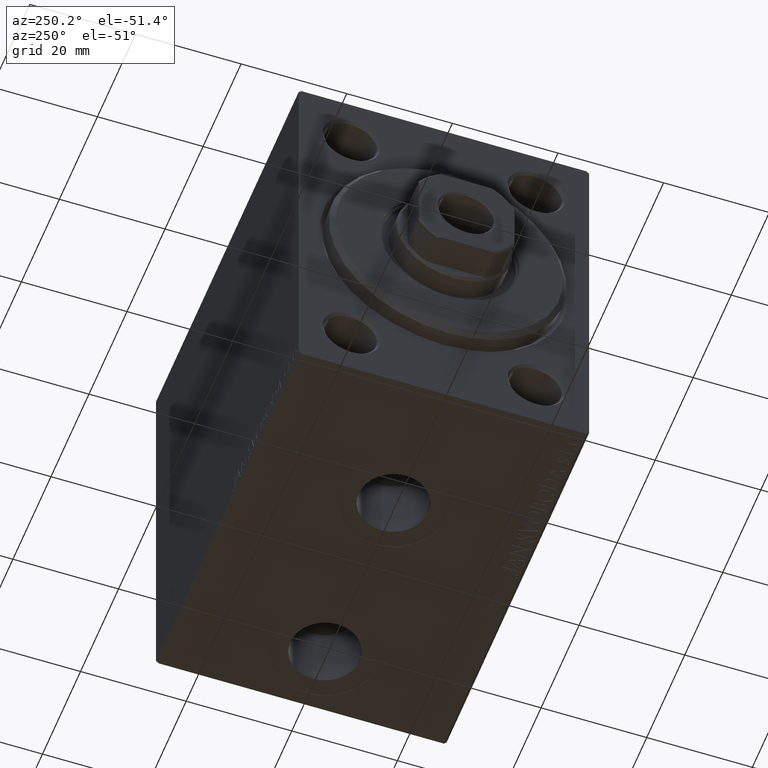
[diagram: clean part render]
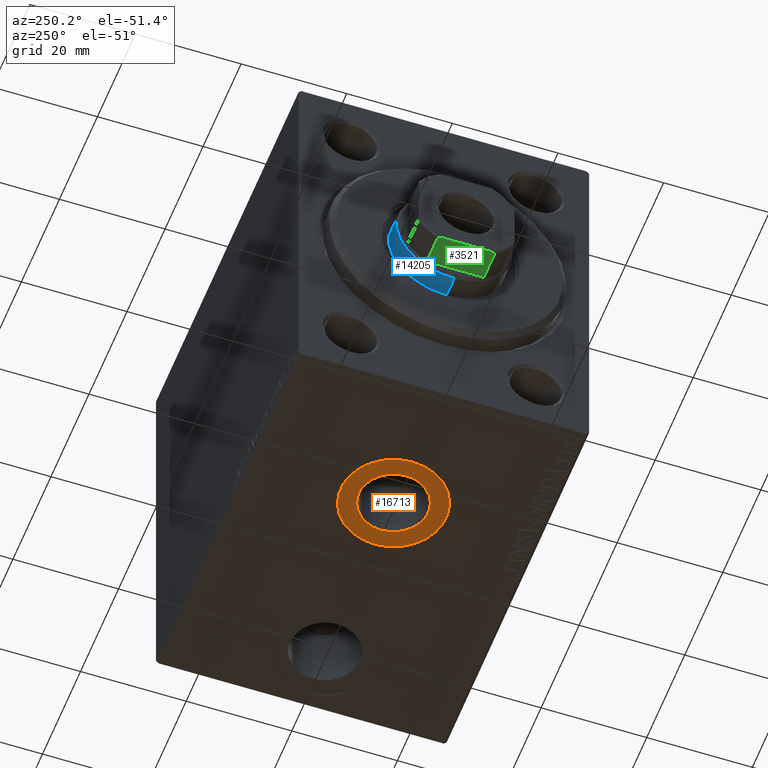
[diagram: same view with three faces highlighted in distinct colors, each labeled with its STEP entity id]
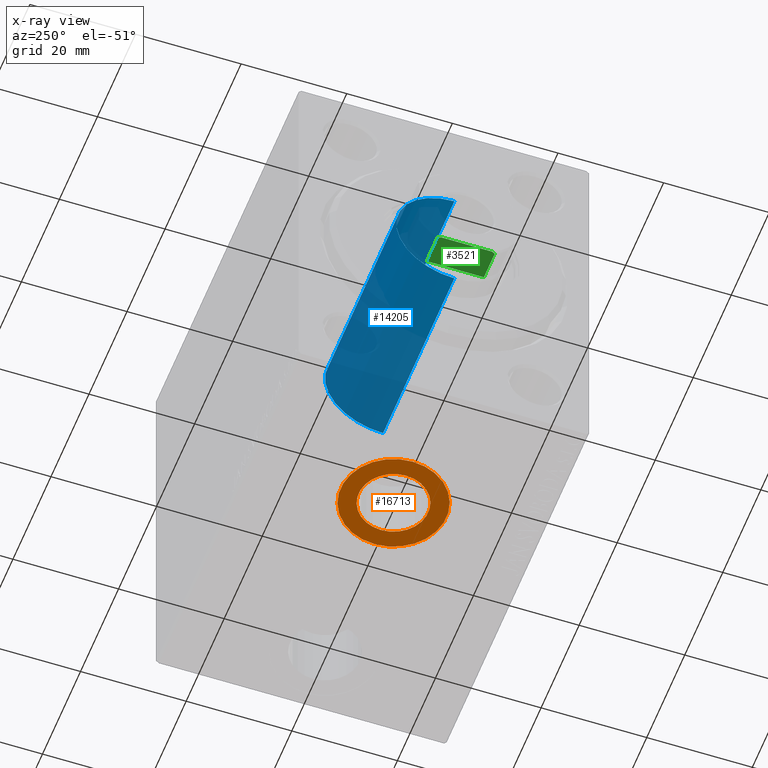
[diagram: x-ray of the same camera — body ghosted, the three highlighted faces saturated]
A machine part, auxiliary view with three faces highlighted in distinct colors.
The next image is the same camera in x-ray (body ghosted, the three faces saturated) — at least one of them is partly hidden behind the body in this view.
Their STEP definitions:

[orange] entity #16713 — the highlighted planar face has unit normal (0, 0, -1).
#9 = AXIS2_PLACEMENT_3D ( 'NONE', #40046, #1789, #26445 ) ;
#1789 = DIRECTION ( 'NONE',  ( 0.000000000000000000, 0.000000000000000000, -1.000000000000000000 ) ) ;
#2580 = EDGE_LOOP ( 'NONE', ( #9465, #25286 ) ) ;
#4711 = DIRECTION ( 'NONE',  ( -1.000000000000000000, 0.000000000000000000, 0.000000000000000000 ) ) ;
#5882 = FACE_BOUND ( 'NONE', #28561, .T. ) ;
#6162 = CARTESIAN_POINT ( 'NONE',  ( 26.50000000000000000, -3.461774290897328353E-15, -37.39999999999999858 ) ) ;
#6173 = AXIS2_PLACEMENT_3D ( 'NONE', #35831, #33281, #4711 ) ;
#6832 = AXIS2_PLACEMENT_3D ( 'NONE', #24485, #11510, #22556 ) ;
#7525 = CIRCLE ( 'NONE', #45043, 9.999999999999998224 ) ;
#8184 = CARTESIAN_POINT ( 'NONE',  ( 33.07999999999999829, -2.655956697058369311E-15, -37.39999999999999858 ) ) ;
#9465 = ORIENTED_EDGE ( 'NONE', *, *, #43912, .T. ) ;
#11510 = DIRECTION ( 'NONE',  ( 0.000000000000000000, 0.000000000000000000, -1.000000000000000000 ) ) ;
#12065 = ORIENTED_EDGE ( 'NONE', *, *, #13625, .F. ) ;
#12854 = DIRECTION ( 'NONE',  ( -1.000000000000000000, 0.000000000000000000, 0.000000000000000000 ) ) ;
#13625 = EDGE_CURVE ( 'NONE', #15813, #20810, #26037, .T. ) ;
#15813 = VERTEX_POINT ( 'NONE', #8184 ) ;
#16713 = ADVANCED_FACE ( 'NONE', ( #5882, #41363 ), #29869, .T. ) ;
#19935 = CARTESIAN_POINT ( 'NONE',  ( 0.000000000000000000, 0.000000000000000000, -37.39999999999999858 ) ) ;
#20810 = VERTEX_POINT ( 'NONE', #44692 ) ;
#22556 = DIRECTION ( 'NONE',  ( -1.000000000000000000, 0.000000000000000000, 0.000000000000000000 ) ) ;
#22947 = DIRECTION ( 'NONE',  ( 0.000000000000000000, 0.000000000000000000, -1.000000000000000000 ) ) ;
#23177 = AXIS2_PLACEMENT_3D ( 'NONE', #19935, #22947, #37444 ) ;
#23554 = CIRCLE ( 'NONE', #9, 6.580000000000002736 ) ;
#24485 = CARTESIAN_POINT ( 'NONE',  ( 26.50000000000000000, -3.461774290897328353E-15, -37.39999999999999858 ) ) ;
#25286 = ORIENTED_EDGE ( 'NONE', *, *, #42513, .T. ) ;
#26037 = CIRCLE ( 'NONE', #6173, 6.580000000000002736 ) ;
#26445 = DIRECTION ( 'NONE',  ( -1.000000000000000000, 0.000000000000000000, 0.000000000000000000 ) ) ;
#28561 = EDGE_LOOP ( 'NONE', ( #39256, #12065 ) ) ;
#29869 = PLANE ( 'NONE',  #23177 ) ;
#30818 = DIRECTION ( 'NONE',  ( 0.000000000000000000, 0.000000000000000000, -1.000000000000000000 ) ) ;
#32822 = EDGE_CURVE ( 'NONE', #20810, #15813, #23554, .T. ) ;
#33281 = DIRECTION ( 'NONE',  ( 0.000000000000000000, 0.000000000000000000, -1.000000000000000000 ) ) ;
#33314 = VERTEX_POINT ( 'NONE', #38109 ) ;
#34442 = VERTEX_POINT ( 'NONE', #42897 ) ;
#35831 = CARTESIAN_POINT ( 'NONE',  ( 26.50000000000000000, -3.461774290897328353E-15, -37.39999999999999858 ) ) ;
#37444 = DIRECTION ( 'NONE',  ( -1.000000000000000000, 0.000000000000000000, -0.000000000000000000 ) ) ;
#37698 = CIRCLE ( 'NONE', #6832, 9.999999999999998224 ) ;
#38109 = CARTESIAN_POINT ( 'NONE',  ( 16.50000000000000000, -3.461774290897328353E-15, -37.39999999999999858 ) ) ;
#39256 = ORIENTED_EDGE ( 'NONE', *, *, #32822, .F. ) ;
#40046 = CARTESIAN_POINT ( 'NONE',  ( 26.50000000000000000, -3.461774290897328353E-15, -37.39999999999999858 ) ) ;
#41363 = FACE_OUTER_BOUND ( 'NONE', #2580, .T. ) ;
#42513 = EDGE_CURVE ( 'NONE', #34442, #33314, #7525, .T. ) ;
#42897 = CARTESIAN_POINT ( 'NONE',  ( 36.50000000000000000, -2.237127491749975294E-15, -37.39999999999999858 ) ) ;
#43912 = EDGE_CURVE ( 'NONE', #33314, #34442, #37698, .T. ) ;
#44692 = CARTESIAN_POINT ( 'NONE',  ( 19.91999999999999815, -3.461774290897328353E-15, -37.39999999999999858 ) ) ;
#45043 = AXIS2_PLACEMENT_3D ( 'NONE', #6162, #30818, #12854 ) ;

[blue] entity #14205 — the highlighted cylindrical surface (partial cylindrical patch) has radius 11 mm, axis along (1, -0, -0).
#165 = EDGE_LOOP ( 'NONE', ( #34692, #7423, #38156, #43280 ) ) ;
#475 = CIRCLE ( 'NONE', #23264, 11.00000000000000000 ) ;
#1193 = CARTESIAN_POINT ( 'NONE',  ( -11.00000000000000000, 0.000000000000000000, 70.50000000000002842 ) ) ;
#1559 = AXIS2_PLACEMENT_3D ( 'NONE', #14694, #17917, #25052 ) ;
#3446 = CARTESIAN_POINT ( 'NONE',  ( 11.00000000000000000, 1.347111479062088405E-15, 70.50000000000002842 ) ) ;
#4648 = DIRECTION ( 'NONE',  ( -1.000000000000000000, 0.000000000000000000, 0.000000000000000000 ) ) ;
#5565 = CYLINDRICAL_SURFACE ( 'NONE', #17958, 11.00000000000000000 ) ;
#6686 = EDGE_CURVE ( 'NONE', #40637, #38337, #10393, .T. ) ;
#7423 = ORIENTED_EDGE ( 'NONE', *, *, #7586, .T. ) ;
#7586 = EDGE_CURVE ( 'NONE', #12184, #40637, #20459, .T. ) ;
#8108 = FACE_OUTER_BOUND ( 'NONE', #165, .T. ) ;
#8340 = DIRECTION ( 'NONE',  ( -0.000000000000000000, -0.000000000000000000, -1.000000000000000000 ) ) ;
#10099 = DIRECTION ( 'NONE',  ( -0.000000000000000000, -0.000000000000000000, -1.000000000000000000 ) ) ;
#10393 = CIRCLE ( 'NONE', #1559, 11.00000000000000000 ) ;
#11216 = EDGE_CURVE ( 'NONE', #45274, #38337, #19810, .T. ) ;
#12184 = VERTEX_POINT ( 'NONE', #3446 ) ;
#14205 = ADVANCED_FACE ( 'NONE', ( #8108 ), #5565, .T. ) ;
#14214 = VECTOR ( 'NONE', #21637, 1000.000000000000000 ) ;
#14694 = CARTESIAN_POINT ( 'NONE',  ( 0.000000000000000000, 0.000000000000000000, 33.00000000000000000 ) ) ;
#17917 = DIRECTION ( 'NONE',  ( 0.000000000000000000, 0.000000000000000000, 1.000000000000000000 ) ) ;
#17958 = AXIS2_PLACEMENT_3D ( 'NONE', #32995, #8340, #4648 ) ;
#18134 = DIRECTION ( 'NONE',  ( 0.000000000000000000, 0.000000000000000000, -1.000000000000000000 ) ) ;
#19810 = LINE ( 'NONE', #23492, #14214 ) ;
#20459 = LINE ( 'NONE', #34749, #41293 ) ;
#21637 = DIRECTION ( 'NONE',  ( -0.000000000000000000, -0.000000000000000000, -1.000000000000000000 ) ) ;
#21810 = CARTESIAN_POINT ( 'NONE',  ( 0.000000000000000000, 0.000000000000000000, 70.50000000000002842 ) ) ;
#23264 = AXIS2_PLACEMENT_3D ( 'NONE', #21810, #18134, #38634 ) ;
#23492 = CARTESIAN_POINT ( 'NONE',  ( -11.00000000000000000, 0.000000000000000000, 71.00000000000001421 ) ) ;
#24685 = CARTESIAN_POINT ( 'NONE',  ( -11.00000000000000000, 0.000000000000000000, 33.00000000000000000 ) ) ;
#24729 = EDGE_CURVE ( 'NONE', #45274, #12184, #475, .T. ) ;
#25052 = DIRECTION ( 'NONE',  ( 1.000000000000000000, 0.000000000000000000, 0.000000000000000000 ) ) ;
#32995 = CARTESIAN_POINT ( 'NONE',  ( 0.000000000000000000, 0.000000000000000000, 71.00000000000001421 ) ) ;
#34692 = ORIENTED_EDGE ( 'NONE', *, *, #24729, .T. ) ;
#34749 = CARTESIAN_POINT ( 'NONE',  ( 11.00000000000000000, 1.347111479062088405E-15, 71.00000000000001421 ) ) ;
#38156 = ORIENTED_EDGE ( 'NONE', *, *, #6686, .T. ) ;
#38337 = VERTEX_POINT ( 'NONE', #24685 ) ;
#38634 = DIRECTION ( 'NONE',  ( 1.000000000000000000, 0.000000000000000000, 0.000000000000000000 ) ) ;
#40637 = VERTEX_POINT ( 'NONE', #40777 ) ;
#40777 = CARTESIAN_POINT ( 'NONE',  ( 11.00000000000000000, 1.347111479062088405E-15, 33.00000000000000000 ) ) ;
#41293 = VECTOR ( 'NONE', #10099, 1000.000000000000000 ) ;
#43280 = ORIENTED_EDGE ( 'NONE', *, *, #11216, .F. ) ;
#45274 = VERTEX_POINT ( 'NONE', #1193 ) ;

[green] entity #3521 — the highlighted planar face has unit normal (0, 0, 1).
#429 = CARTESIAN_POINT ( 'NONE',  ( -9.000000000000000000, -5.408326913195987018, -0.001000000000001000089 ) ) ;
#813 = CARTESIAN_POINT ( 'NONE',  ( -8.999999999999998224, -4.799999999999999822, 77.00000000000001421 ) ) ;
#1049 = ORIENTED_EDGE ( 'NONE', *, *, #22033, .F. ) ;
#1085 = PLANE ( 'NONE',  #12596 ) ;
#2860 = ORIENTED_EDGE ( 'NONE', *, *, #14551, .T. ) ;
#3521 = ADVANCED_FACE ( 'NONE', ( #36110 ), #1085, .F. ) ;
#3727 = EDGE_CURVE ( 'NONE', #40900, #17429, #19389, .T. ) ;
#3826 = CARTESIAN_POINT ( 'NONE',  ( -9.000000000000000000, -5.408326913195987018, 76.70000000000001705 ) ) ;
#4422 = DIRECTION ( 'NONE',  ( 1.927470528863119049E-16, -1.000000000000000000, 0.000000000000000000 ) ) ;
#4496 = CARTESIAN_POINT ( 'NONE',  ( -8.999999999999998224, -5.004607318780305292, 76.90371420292693472 ) ) ;
#5098 = EDGE_LOOP ( 'NONE', ( #27130, #7252, #19359, #2860, #1049, #15009 ) ) ;
#7066 = B_SPLINE_CURVE_WITH_KNOTS ( 'NONE', 3,
 ( #16556, #41200, #9202, #13564 ),
 .UNSPECIFIED., .F., .F.,
 ( 4, 4 ),
 ( 0.000000000000000000, 0.0006782784334759449580 ),
 .UNSPECIFIED. ) ;
#7252 = ORIENTED_EDGE ( 'NONE', *, *, #8255, .T. ) ;
#7286 = CARTESIAN_POINT ( 'NONE',  ( -8.999999999999998224, 5.408326913195986130, 71.00000000000002842 ) ) ;
#8255 = EDGE_CURVE ( 'NONE', #43759, #22034, #34913, .T. ) ;
#9202 = CARTESIAN_POINT ( 'NONE',  ( -9.000000000000001776, 5.207299490555469035, 76.80354495430067630 ) ) ;
#10717 = VECTOR ( 'NONE', #26787, 1000.000000000000000 ) ;
#12361 = LINE ( 'NONE', #23856, #42054 ) ;
#12596 = AXIS2_PLACEMENT_3D ( 'NONE', #21831, #15152, #14701 ) ;
#13564 = CARTESIAN_POINT ( 'NONE',  ( -8.999999999999998224, 5.408326913195988794, 76.70000000000000284 ) ) ;
#14208 = CARTESIAN_POINT ( 'NONE',  ( -9.000000000000000000, -5.207299490555472588, 76.80354495430069051 ) ) ;
#14551 = EDGE_CURVE ( 'NONE', #32590, #30325, #7066, .T. ) ;
#14701 = DIRECTION ( 'NONE',  ( -1.927470528863119049E-16, 1.000000000000000000, 0.000000000000000000 ) ) ;
#15009 = ORIENTED_EDGE ( 'NONE', *, *, #3727, .T. ) ;
#15152 = DIRECTION ( 'NONE',  ( 1.000000000000000000, 1.927470528863119049E-16, -0.000000000000000000 ) ) ;
#15493 = CARTESIAN_POINT ( 'NONE',  ( -8.999999999999998224, -4.799999999999999822, 77.00000000000001421 ) ) ;
#16556 = CARTESIAN_POINT ( 'NONE',  ( -9.000000000000001776, 4.799999999999986500, 77.00000000000001421 ) ) ;
#17429 = VERTEX_POINT ( 'NONE', #42052 ) ;
#18622 = DIRECTION ( 'NONE',  ( -0.000000000000000000, -0.000000000000000000, 1.000000000000000000 ) ) ;
#18976 = CARTESIAN_POINT ( 'NONE',  ( -9.000000000000000000, -5.408326913195987018, 76.70000000000001705 ) ) ;
#19359 = ORIENTED_EDGE ( 'NONE', *, *, #35886, .F. ) ;
#19389 = LINE ( 'NONE', #33454, #36145 ) ;
#20532 = CARTESIAN_POINT ( 'NONE',  ( -9.000000000000001776, 4.799999999999986500, 77.00000000000001421 ) ) ;
#21831 = CARTESIAN_POINT ( 'NONE',  ( -9.000000000000001776, 8.999999999999998224, 77.00000000000001421 ) ) ;
#22034 = VERTEX_POINT ( 'NONE', #15493 ) ;
#22033 = EDGE_CURVE ( 'NONE', #40900, #30325, #30231, .T. ) ;
#23856 = CARTESIAN_POINT ( 'NONE',  ( -9.000000000000001776, 8.999999999999998224, 77.00000000000001421 ) ) ;
#26787 = DIRECTION ( 'NONE',  ( -0.000000000000000000, -0.000000000000000000, 1.000000000000000000 ) ) ;
#27130 = ORIENTED_EDGE ( 'NONE', *, *, #30019, .T. ) ;
#29850 = CARTESIAN_POINT ( 'NONE',  ( -8.999999999999998224, 5.408326913195988794, 76.70000000000000284 ) ) ;
#30019 = EDGE_CURVE ( 'NONE', #17429, #43759, #32018, .T. ) ;
#30231 = LINE ( 'NONE', #43369, #10717 ) ;
#30325 = VERTEX_POINT ( 'NONE', #29850 ) ;
#32018 = LINE ( 'NONE', #429, #44091 ) ;
#32590 = VERTEX_POINT ( 'NONE', #20532 ) ;
#33454 = CARTESIAN_POINT ( 'NONE',  ( -9.000000000000001776, 8.999999999999998224, 71.00000000000001421 ) ) ;
#34913 = B_SPLINE_CURVE_WITH_KNOTS ( 'NONE', 3,
 ( #3826, #14208, #4496, #813 ),
 .UNSPECIFIED., .F., .F.,
 ( 4, 4 ),
 ( 0.000000000000000000, 0.0006782784334759247918 ),
 .UNSPECIFIED. ) ;
#35886 = EDGE_CURVE ( 'NONE', #32590, #22034, #12361, .T. ) ;
#36110 = FACE_OUTER_BOUND ( 'NONE', #5098, .T. ) ;
#36145 = VECTOR ( 'NONE', #4422, 1000.000000000000000 ) ;
#37911 = DIRECTION ( 'NONE',  ( 1.927470528863119049E-16, -1.000000000000000000, 0.000000000000000000 ) ) ;
#40900 = VERTEX_POINT ( 'NONE', #7286 ) ;
#41200 = CARTESIAN_POINT ( 'NONE',  ( -9.000000000000001776, 5.004607318780292857, 76.90371420292692051 ) ) ;
#42052 = CARTESIAN_POINT ( 'NONE',  ( -9.000000000000000000, -5.408326913195987018, 71.00000000000002842 ) ) ;
#42054 = VECTOR ( 'NONE', #37911, 1000.000000000000000 ) ;
#43369 = CARTESIAN_POINT ( 'NONE',  ( -8.999999999999998224, 5.408326913195988794, -0.001000000000001000089 ) ) ;
#43759 = VERTEX_POINT ( 'NONE', #18976 ) ;
#44091 = VECTOR ( 'NONE', #18622, 1000.000000000000000 ) ;